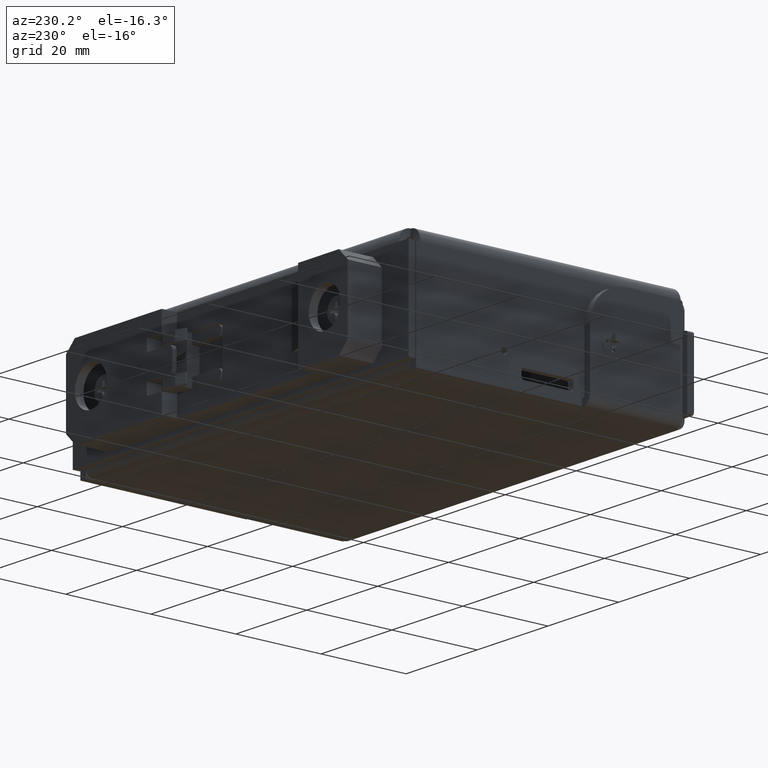
[diagram: clean part render]
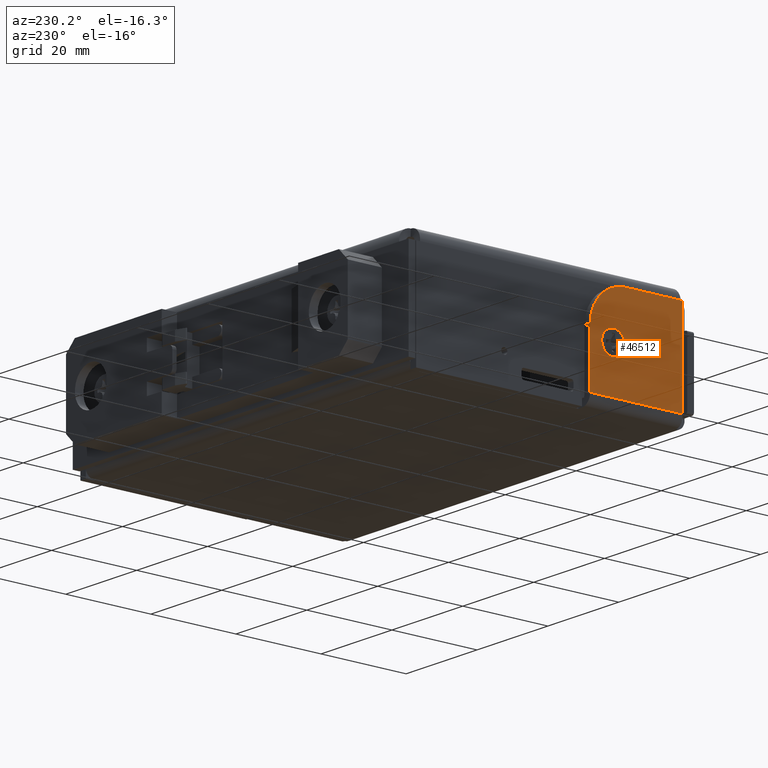
[diagram: same view with one face highlighted and labeled with its STEP entity id]
A machine part, auxiliary view. The second image highlights one B-rep face of the part: STEP entity #46512.
In plain terms, the highlighted planar face has unit normal (-1, 0, 0).
Its self-contained STEP definition (entity closure, byte-faithful):
#512=FACE_BOUND('',#6694,.T.);
#826=PLANE('',#48857);
#4098=FACE_OUTER_BOUND('',#6693,.T.);
#6693=EDGE_LOOP('',(#34073,#34074,#34075,#34076,#34077,#34078));
#6694=EDGE_LOOP('',(#34079));
#9671=LINE('',#70333,#14816);
#9681=LINE('',#70360,#14826);
#9682=LINE('',#70362,#14827);
#9683=LINE('',#70363,#14828);
#14816=VECTOR('',#52887,0.393700787401575);
#14826=VECTOR('',#52917,0.393700787401575);
#14827=VECTOR('',#52918,0.393700787401575);
#14828=VECTOR('',#52919,0.393700787401575);
#19290=CIRCLE('',#48662,0.105);
#19323=CIRCLE('',#48845,0.02);
#19327=CIRCLE('',#48856,0.330302952856007);
#20219=VERTEX_POINT('',#63320);
#21059=VERTEX_POINT('',#70320);
#21060=VERTEX_POINT('',#70321);
#21064=VERTEX_POINT('',#70331);
#21070=VERTEX_POINT('',#70355);
#21071=VERTEX_POINT('',#70359);
#21072=VERTEX_POINT('',#70361);
#24658=EDGE_CURVE('',#20219,#20219,#19290,.T.);
#25888=EDGE_CURVE('',#21059,#21060,#19323,.T.);
#25894=EDGE_CURVE('',#21059,#21064,#9671,.T.);
#25906=EDGE_CURVE('',#21064,#21070,#19327,.T.);
#25907=EDGE_CURVE('',#21070,#21071,#9681,.T.);
#25908=EDGE_CURVE('',#21071,#21072,#9682,.T.);
#25909=EDGE_CURVE('',#21072,#21060,#9683,.T.);
#34073=ORIENTED_EDGE('',*,*,#25888,.F.);
#34074=ORIENTED_EDGE('',*,*,#25894,.T.);
#34075=ORIENTED_EDGE('',*,*,#25906,.T.);
#34076=ORIENTED_EDGE('',*,*,#25907,.T.);
#34077=ORIENTED_EDGE('',*,*,#25908,.T.);
#34078=ORIENTED_EDGE('',*,*,#25909,.T.);
#34079=ORIENTED_EDGE('',*,*,#24658,.T.);
#46512=ADVANCED_FACE('',(#4098,#512),#826,.T.);
#48662=AXIS2_PLACEMENT_3D('',#63321,#51842,#51843);
#48845=AXIS2_PLACEMENT_3D('',#70322,#52877,#52878);
#48856=AXIS2_PLACEMENT_3D('',#70357,#52913,#52914);
#48857=AXIS2_PLACEMENT_3D('',#70358,#52915,#52916);
#51842=DIRECTION('center_axis',(1.,0.,-1.71512449944288E-15));
#51843=DIRECTION('ref_axis',(0.,-1.,0.));
#52877=DIRECTION('center_axis',(1.,0.,-1.71512449944288E-15));
#52878=DIRECTION('ref_axis',(0.,-0.707106781186541,0.707106781186554));
#52887=DIRECTION('',(0.,1.,0.));
#52913=DIRECTION('center_axis',(-1.,0.,1.71512449944288E-15));
#52914=DIRECTION('ref_axis',(1.71382100836206E-15,0.0428200025681838,0.999082803064921));
#52915=DIRECTION('center_axis',(-1.,0.,1.71512449944288E-15));
#52916=DIRECTION('ref_axis',(1.71512449944288E-15,0.,1.));
#52917=DIRECTION('',(-1.71512449944288E-15,0.,-1.));
#52918=DIRECTION('',(0.,-1.,0.));
#52919=DIRECTION('',(1.71512449944288E-15,0.,1.));
#63320=CARTESIAN_POINT('',(-1.932,-0.857000000000001,0.5));
#63321=CARTESIAN_POINT('Origin',(-1.932,-0.962000000000001,0.5));
#70320=CARTESIAN_POINT('',(-1.932,-1.58615937956643,0.932));
#70321=CARTESIAN_POINT('',(-1.932,-1.60615937956643,0.912));
#70322=CARTESIAN_POINT('Origin',(-1.932,-1.58615937956643,0.912));
#70331=CARTESIAN_POINT('',(-1.932,-1.06615937956643,0.932));
#70333=CARTESIAN_POINT('',(-1.932,-0.75,0.932));
#70355=CARTESIAN_POINT('',(-1.932,-0.75,0.602));
#70357=CARTESIAN_POINT('Origin',(-1.932,-1.08030295285601,0.602));
#70358=CARTESIAN_POINT('Origin',(-1.932,-1.18005711791559,0.462175117465897));
#70359=CARTESIAN_POINT('',(-1.932,-0.75,0.0920000000000002));
#70360=CARTESIAN_POINT('',(-1.932,-0.75,0.0920000000000002));
#70361=CARTESIAN_POINT('',(-1.932,-1.60615937956643,0.0920000000000002));
#70362=CARTESIAN_POINT('',(-1.932,-1.18252855895779,0.0920000000000002));
#70363=CARTESIAN_POINT('',(-1.932,-1.60615937956643,0.0920000000000002));